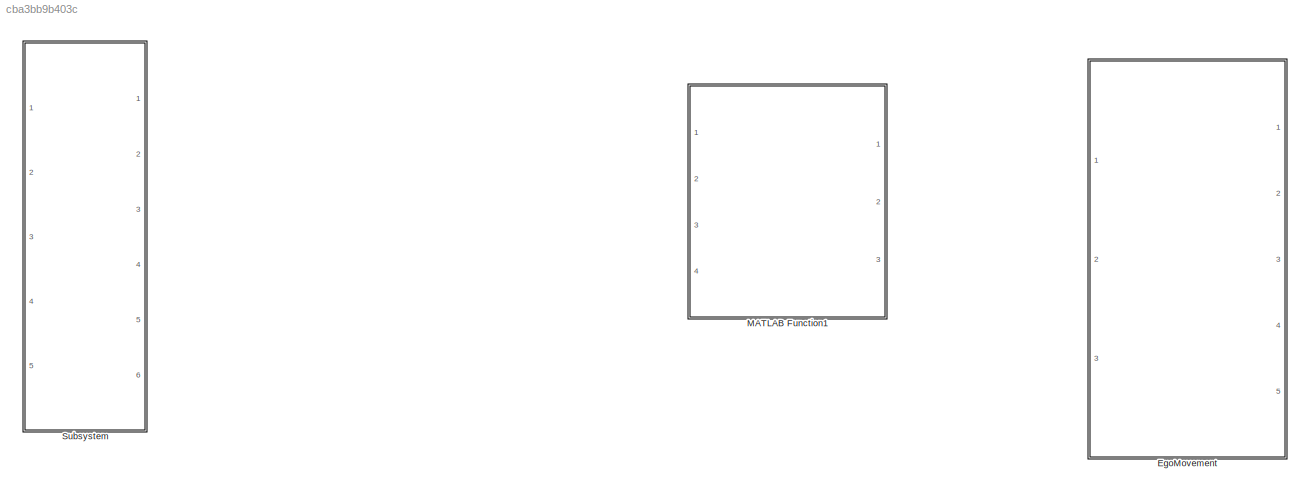
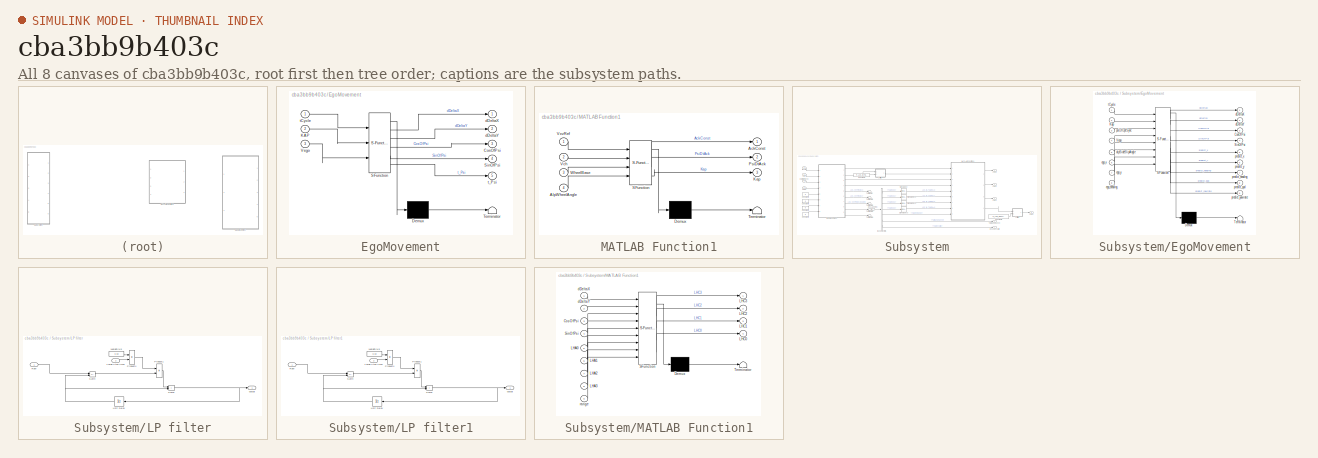
[diagram: thumbnail index - all 8 canvases of the model, root first then tree order]
MODEL slx_cba3bb9b403c
KIND model
CONFIG AbsTol = auto
CONFIG EnableMultiTasking = off
CONFIG FixedStep = auto
CONFIG MaxStep = auto
CONFIG MinStep = auto
CONFIG RelTol = 1e-3
CONFIG SampleTimeConstraint = Unconstrained
CONFIG SolverName = VariableStepAuto
CONFIG StartTime = 0.0
CONFIG StopTime = 10.0
BLOCK [SubSystem] EgoMovement
  ErrorFcn = Stateflow.Translate.translate
  PermitHierarchicalResolution = ExplicitOnly
  Ports = [3, 5]
  RequestExecContextInheritance = off
  SFBlockType = MATLAB Function
  TreatAsAtomicUnit = on
BLOCK [Demux] EgoMovement/ Demux 
  Outputs = 1
  Ports = [1, 1]
BLOCK [S-Function] EgoMovement/ SFunction 
  EnableBusSupport = on
  FunctionName = sf_sfun
  PortCounts = [3 6]
  Ports = [3, 6]
  SFcnIsStateOwnerBlock = off
  SFunctionDeploymentMode = off
  Tag = Stateflow S-Function 1
BLOCK [Terminator] EgoMovement/ Terminator 
BLOCK [Outport] EgoMovement/CosOfPsi
  Port = 3
BLOCK [Inport] EgoMovement/KAP
  Port = 2
BLOCK [Outport] EgoMovement/SinOfPsi
  Port = 4
BLOCK [Inport] EgoMovement/Vego
  Port = 3
BLOCK [Outport] EgoMovement/dDeltaX
BLOCK [Outport] EgoMovement/dDeltaY
  Port = 2
BLOCK [Inport] EgoMovement/tCycle
BLOCK [Outport] EgoMovement/t_Psi
  Port = 5
BLOCK [SubSystem] MATLAB Function1
  ErrorFcn = Stateflow.Translate.translate
  PermitHierarchicalResolution = ExplicitOnly
  Ports = [4, 3]
  RequestExecContextInheritance = off
  SFBlockType = MATLAB Function
  TreatAsAtomicUnit = on
BLOCK [Demux] MATLAB Function1/ Demux 
  Outputs = 1
  Ports = [1, 1]
BLOCK [S-Function] MATLAB Function1/ SFunction 
  EnableBusSupport = on
  FunctionName = sf_sfun
  PortCounts = [4 4]
  Ports = [4, 4]
  SFcnIsStateOwnerBlock = off
  SFunctionDeploymentMode = off
  Tag = Stateflow S-Function 3
BLOCK [Terminator] MATLAB Function1/ Terminator 
BLOCK [Outport] MATLAB Function1/AckConst
BLOCK [Inport] MATLAB Function1/AlpWheelAngle
  Port = 4
BLOCK [Outport] MATLAB Function1/Kap
  Port = 3
BLOCK [Outport] MATLAB Function1/PsiDtAck
  Port = 2
BLOCK [Inport] MATLAB Function1/Vch
  Port = 2
BLOCK [Inport] MATLAB Function1/VxvRef
BLOCK [Inport] MATLAB Function1/WheelBase
  Port = 3
BLOCK [SubSystem] Subsystem
  Ports = [5, 6]
  RequestExecContextInheritance = off
BLOCK [BusSelector] Subsystem/Bus Selector5
  OutputSignals = TarLineC0,TarLineC1,TarLineC2,TarLineC3,TarLineRange,TarDangerLevel,TarLineValid
  Ports = [1, 7]
BLOCK [Constant] Subsystem/Constant1
  OutDataTypeStr = single
  Value = 0
BLOCK [Constant] Subsystem/Constant2
  OutDataTypeStr = single
  Value = 0
BLOCK [Constant] Subsystem/Constant3
  OutDataTypeStr = single
  Value = 0
BLOCK [Constant] Subsystem/Constant4
  OutDataTypeStr = single
  Value = P_LCS_DyFilterTime
BLOCK [Constant] Subsystem/Constant5
  OutDataTypeStr = single
  Value = P_LCS_DesLineA0FilterTime
BLOCK [Constant] Subsystem/Constant8
  OutDataTypeStr = single
  Value = 0
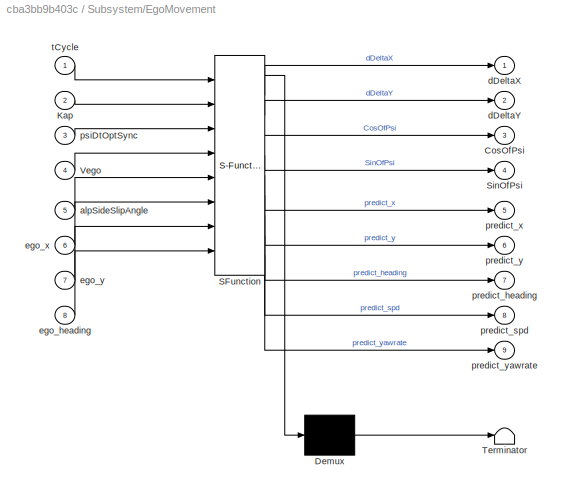
BLOCK [SubSystem] Subsystem/EgoMovement
  ErrorFcn = Stateflow.Translate.translate
  PermitHierarchicalResolution = ExplicitOnly
  Ports = [8, 9]
  RequestExecContextInheritance = off
  SFBlockType = MATLAB Function
  TreatAsAtomicUnit = on
BLOCK [Demux] Subsystem/EgoMovement/ Demux 
  Outputs = 1
  Ports = [1, 1]
BLOCK [S-Function] Subsystem/EgoMovement/ SFunction 
  EnableBusSupport = off
  FunctionName = sf_sfun
  PortCounts = [8 10]
  Ports = [8, 10]
  SFcnIsStateOwnerBlock = off
  SFunctionDeploymentMode = off
  Tag = Stateflow S-Function 9
BLOCK [Terminator] Subsystem/EgoMovement/ Terminator 
BLOCK [Outport] Subsystem/EgoMovement/CosOfPsi
  Port = 3
BLOCK [Inport] Subsystem/EgoMovement/Kap
  Port = 2
BLOCK [Outport] Subsystem/EgoMovement/SinOfPsi
  Port = 4
BLOCK [Inport] Subsystem/EgoMovement/Vego
  Port = 4
BLOCK [Inport] Subsystem/EgoMovement/alpSideSlipAngle
  Port = 5
BLOCK [Outport] Subsystem/EgoMovement/dDeltaX
BLOCK [Outport] Subsystem/EgoMovement/dDeltaY
  Port = 2
BLOCK [Inport] Subsystem/EgoMovement/ego_heading
  Port = 8
BLOCK [Inport] Subsystem/EgoMovement/ego_x
  Port = 6
BLOCK [Inport] Subsystem/EgoMovement/ego_y
  Port = 7
BLOCK [Outport] Subsystem/EgoMovement/predict_heading
  Port = 7
BLOCK [Outport] Subsystem/EgoMovement/predict_spd
  Port = 8
BLOCK [Outport] Subsystem/EgoMovement/predict_x
  Port = 5
BLOCK [Outport] Subsystem/EgoMovement/predict_y
  Port = 6
BLOCK [Outport] Subsystem/EgoMovement/predict_yawrate
  Port = 9
BLOCK [Inport] Subsystem/EgoMovement/psiDtOptSync
  Port = 3
BLOCK [Inport] Subsystem/EgoMovement/tCycle
BLOCK [Inport] Subsystem/Kap
  Port = 2
BLOCK [Outport] Subsystem/LHC0
  Port = 5
BLOCK [Outport] Subsystem/LHC1
  Port = 4
BLOCK [Outport] Subsystem/LHC2
  Port = 3
BLOCK [Outport] Subsystem/LHC3
  Port = 2
BLOCK [SubSystem] Subsystem/LP filter
  Ports = [2, 1]
  RequestExecContextInheritance = off
BLOCK [Product] Subsystem/LP filter/Product1
  Ports = [2, 1]
  RndMeth = Zero
BLOCK [Product] Subsystem/LP filter/Product4
  Inputs = */
  Ports = [2, 1]
  RndMeth = Zero
BLOCK [Inport] Subsystem/LP filter/Raw
BLOCK [Sum] Subsystem/LP filter/Sum4
  IconShape = rectangular
  Inputs = +-
  Ports = [2, 1]
BLOCK [Sum] Subsystem/LP filter/Sum5
  IconShape = rectangular
  Ports = [2, 1]
BLOCK [Inport] Subsystem/LP filter/TorqFilterTime
  Port = 2
BLOCK [UnitDelay] Subsystem/LP filter/Unit Delay
  HasFrameUpgradeWarning = on
  NameLocation = top
  SampleTime = -1
BLOCK [Constant] Subsystem/LP filter/Weight//N3
  OutDataTypeStr = single
  Value = 0.02
BLOCK [Outport] Subsystem/LP filter/output
BLOCK [SubSystem] Subsystem/LP filter1
  Ports = [2, 1]
  RequestExecContextInheritance = off
BLOCK [Product] Subsystem/LP filter1/Product1
  Ports = [2, 1]
  RndMeth = Zero
BLOCK [Product] Subsystem/LP filter1/Product4
  Inputs = */
  Ports = [2, 1]
  RndMeth = Zero
BLOCK [Inport] Subsystem/LP filter1/Raw
BLOCK [Sum] Subsystem/LP filter1/Sum4
  IconShape = rectangular
  Inputs = +-
  Ports = [2, 1]
BLOCK [Sum] Subsystem/LP filter1/Sum5
  IconShape = rectangular
  Ports = [2, 1]
BLOCK [Inport] Subsystem/LP filter1/TorqFilterTime
  Port = 2
BLOCK [UnitDelay] Subsystem/LP filter1/Unit Delay
  HasFrameUpgradeWarning = on
  NameLocation = top
  SampleTime = -1
BLOCK [Constant] Subsystem/LP filter1/Weight//N3
  OutDataTypeStr = single
  Value = 0.02
BLOCK [Outport] Subsystem/LP filter1/output
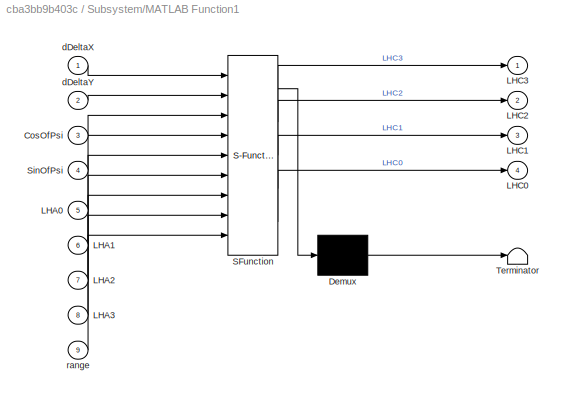
BLOCK [SubSystem] Subsystem/MATLAB Function1
  ErrorFcn = Stateflow.Translate.translate
  PermitHierarchicalResolution = ExplicitOnly
  Ports = [9, 4]
  RequestExecContextInheritance = off
  SFBlockType = MATLAB Function
  TreatAsAtomicUnit = on
BLOCK [Demux] Subsystem/MATLAB Function1/ Demux 
  Outputs = 1
  Ports = [1, 1]
BLOCK [S-Function] Subsystem/MATLAB Function1/ SFunction 
  EnableBusSupport = off
  FunctionName = sf_sfun
  PortCounts = [9 5]
  Ports = [9, 5]
  SFcnIsStateOwnerBlock = off
  SFunctionDeploymentMode = off
  Tag = Stateflow S-Function 23
BLOCK [Terminator] Subsystem/MATLAB Function1/ Terminator 
BLOCK [Inport] Subsystem/MATLAB Function1/CosOfPsi
  Port = 3
BLOCK [Inport] Subsystem/MATLAB Function1/LHA0
  Port = 5
BLOCK [Inport] Subsystem/MATLAB Function1/LHA1
  Port = 6
BLOCK [Inport] Subsystem/MATLAB Function1/LHA2
  Port = 7
BLOCK [Inport] Subsystem/MATLAB Function1/LHA3
  Port = 8
BLOCK [Outport] Subsystem/MATLAB Function1/LHC0
  Port = 4
BLOCK [Outport] Subsystem/MATLAB Function1/LHC1
  Port = 3
BLOCK [Outport] Subsystem/MATLAB Function1/LHC2
  Port = 2
BLOCK [Outport] Subsystem/MATLAB Function1/LHC3
BLOCK [Inport] Subsystem/MATLAB Function1/SinOfPsi
  Port = 4
BLOCK [Inport] Subsystem/MATLAB Function1/dDeltaX
BLOCK [Inport] Subsystem/MATLAB Function1/dDeltaY
  Port = 2
BLOCK [Inport] Subsystem/MATLAB Function1/range
  Port = 9
BLOCK [SignalConversion] Subsystem/Signal Copy
  OverrideOpt = off
BLOCK [SignalConversion] Subsystem/Signal Copy1
  OverrideOpt = off
BLOCK [SignalConversion] Subsystem/Signal Copy2
  OverrideOpt = off
BLOCK [SignalConversion] Subsystem/Signal Copy3
  OverrideOpt = off
BLOCK [Outport] Subsystem/TarDangerLevel
  Port = 6
BLOCK [Terminator] Subsystem/Terminator
BLOCK [Terminator] Subsystem/Terminator1
BLOCK [Terminator] Subsystem/Terminator2
BLOCK [Terminator] Subsystem/Terminator3
BLOCK [Terminator] Subsystem/Terminator4
BLOCK [Inport] Subsystem/Vego
  Port = 4
BLOCK [Inport] Subsystem/desLaneRel
  Port = 5
BLOCK [Outport] Subsystem/desLaneValid
BLOCK [Inport] Subsystem/psiDtOptSync
  Port = 3
BLOCK [Inport] Subsystem/tCycle
LINE Subsystem/Bus Selector5:1 -> Subsystem/Signal Copy:1
LINE Subsystem/Bus Selector5:2 -> Subsystem/Signal Copy1:1
LINE Subsystem/Bus Selector5:3 -> Subsystem/Signal Copy2:1
LINE Subsystem/Bus Selector5:4 -> Subsystem/Signal Copy3:1
LINE Subsystem/Bus Selector5:5 -> Subsystem/MATLAB Function1:9
LINE Subsystem/Bus Selector5:6 -> Subsystem/TarDangerLevel:1
LINE Subsystem/Bus Selector5:7 -> Subsystem/desLaneValid:1
LINE Subsystem/Constant1:1 -> Subsystem/EgoMovement:7
LINE Subsystem/Constant2:1 -> Subsystem/EgoMovement:8
LINE Subsystem/Constant3:1 -> Subsystem/EgoMovement:5
LINE Subsystem/Constant4:1 -> Subsystem/LP filter:2
LINE Subsystem/Constant5:1 -> Subsystem/LP filter1:2
LINE Subsystem/Constant8:1 -> Subsystem/EgoMovement:6
LINE Subsystem/EgoMovement:1 -> Subsystem/MATLAB Function1:1
LINE Subsystem/EgoMovement:2 -> Subsystem/LP filter:1
LINE Subsystem/EgoMovement:3 -> Subsystem/MATLAB Function1:3
LINE Subsystem/EgoMovement:4 -> Subsystem/MATLAB Function1:4
LINE Subsystem/EgoMovement:5 -> Subsystem/Terminator:1
LINE Subsystem/EgoMovement:6 -> Subsystem/Terminator1:1
LINE Subsystem/EgoMovement:7 -> Subsystem/Terminator2:1
LINE Subsystem/EgoMovement:8 -> Subsystem/Terminator3:1
LINE Subsystem/EgoMovement:9 -> Subsystem/Terminator4:1
LINE Subsystem/Kap:1 -> Subsystem/EgoMovement:2
LINE Subsystem/LP filter/Product1:1 -> Subsystem/LP filter/Sum5:1
LINE Subsystem/LP filter/Product4:1 -> Subsystem/LP filter/Product1:1
LINE Subsystem/LP filter/Raw:1 -> Subsystem/LP filter/Sum4:1
LINE Subsystem/LP filter/Sum4:1 -> Subsystem/LP filter/Product1:2
NET Subsystem/LP filter/Sum5:1 -> Subsystem/LP filter/Unit Delay:1, Subsystem/LP filter/output:1
LINE Subsystem/LP filter/TorqFilterTime:1 -> Subsystem/LP filter/Product4:2
NET Subsystem/LP filter/Unit Delay:1 -> Subsystem/LP filter/Sum4:2, Subsystem/LP filter/Sum5:2
LINE Subsystem/LP filter/Weight//N3:1 -> Subsystem/LP filter/Product4:1
LINE Subsystem/LP filter1/Product1:1 -> Subsystem/LP filter1/Sum5:1
LINE Subsystem/LP filter1/Product4:1 -> Subsystem/LP filter1/Product1:1
LINE Subsystem/LP filter1/Raw:1 -> Subsystem/LP filter1/Sum4:1
LINE Subsystem/LP filter1/Sum4:1 -> Subsystem/LP filter1/Product1:2
NET Subsystem/LP filter1/Sum5:1 -> Subsystem/LP filter1/Unit Delay:1, Subsystem/LP filter1/output:1
LINE Subsystem/LP filter1/TorqFilterTime:1 -> Subsystem/LP filter1/Product4:2
NET Subsystem/LP filter1/Unit Delay:1 -> Subsystem/LP filter1/Sum4:2, Subsystem/LP filter1/Sum5:2
LINE Subsystem/LP filter1/Weight//N3:1 -> Subsystem/LP filter1/Product4:1
LINE Subsystem/LP filter1:1 -> Subsystem/LHC0:1
LINE Subsystem/LP filter:1 -> Subsystem/MATLAB Function1:2
LINE Subsystem/MATLAB Function1:1 -> Subsystem/LHC3:1
LINE Subsystem/MATLAB Function1:2 -> Subsystem/LHC2:1
LINE Subsystem/MATLAB Function1:3 -> Subsystem/LHC1:1
LINE Subsystem/MATLAB Function1:4 -> Subsystem/LP filter1:1
LINE Subsystem/Signal Copy1:1 -> Subsystem/MATLAB Function1:6
LINE Subsystem/Signal Copy2:1 -> Subsystem/MATLAB Function1:7
LINE Subsystem/Signal Copy3:1 -> Subsystem/MATLAB Function1:8
LINE Subsystem/Signal Copy:1 -> Subsystem/MATLAB Function1:5
LINE Subsystem/Vego:1 -> Subsystem/EgoMovement:4
LINE Subsystem/desLaneRel:1 -> Subsystem/Bus Selector5:1
LINE Subsystem/psiDtOptSync:1 -> Subsystem/EgoMovement:3
LINE Subsystem/tCycle:1 -> Subsystem/EgoMovement:1
note: NET lines group one-source signal fan-out (src -> all destinations, sorted); 1:1 wires keep LINE
CHART Subsystem/MATLAB Function1 states=1 transitions=1
  STATE_LABEL 'eML_blk_kernel()'
  STATE_LABEL 'SCRIPT:\nfunction [LHC3,LHC2,LHC1,LHC0] = fcn(dDeltaX,dDeltaY,CosOfPsi,SinOfPsi,LHA0,LHA1,LHA2,LHA3,range)\n\n % temp_x = [0,1/4*range,1/2*range,range];\n temp_x = [0,20,40,80];\n  \n y1 = LHA0+LHA1*temp_x(1)+LHA2*temp_x(1)^2+LHA3*temp_x(1)^3;\n y2 = LHA0+LHA1*temp_x(2)+LHA2*temp_x(2)^2+LHA3*temp_x(2)^3;\n y3 = LHA0+LHA1*temp_x(3)+LHA2*temp_x(3)^2+LHA3*temp_x(3)^3;\n y4 = LHA0+LHA1*temp_x(4)+LHA2*temp_x(4)...<+793ch>'
CHART EgoMovement states=1 transitions=1
  STATE_LABEL 'eML_blk_kernel()'
  STATE_LABEL 'SCRIPT:\nfunction [dDeltaX,dDeltaY,CosOfPsi,SinOfPsi,t_Psi] = EgoVehicleMovement(tCycle,KAP,Vego)\n%#codegen\ndDeltaX = single(0);\ndDeltaY = single(0);\nt_Psi = single(0);\nfor i = 1:(length(KAP)-1) % KAP 从最早时间开始排列\n    Kap = KAP(i);\n    if Kap==0\n        dDeltaX = dDeltaX + Vego(i)*tCycle;\n        dDeltaY = dDeltaY + single(0);\n        CosOfPsi = single(1);\n        SinOfPsi = single(0);\n    else\n      ...<+240ch>'
CHART MATLAB Function1 states=1 transitions=1
  STATE_LABEL 'eML_blk_kernel()'
  STATE_LABEL 'SCRIPT:\nfunction [AckConst,PsiDtAck,Kap] = Ackman(VxvRef,Vch,WheelBase,AlpWheelAngle)\n%#codegen\nAckConst = single(zeros(1,1));\nPsiDtAck = single(zeros(length(AlpWheelAngle),1));\nKap = single(zeros(length(AlpWheelAngle),1));\nfor i = 1:length(AlpWheelAngle)\n    if VxvRef(i,1)==uint8(0)%转换常数数据类型\n        PsiDtAck(i,1) = single(0);%转换常数数据类型\n        AckConst = single(1);%转换常数数据类型\n    else\n        AckCon...<+222ch>'
CHART Subsystem/EgoMovement states=1 transitions=1
  STATE_LABEL 'eML_blk_kernel()'
  STATE_LABEL 'SCRIPT:\nfunction [dDeltaX,dDeltaY,CosOfPsi,SinOfPsi,predict_x,predict_y,predict_heading,predict_spd,predict_yawrate] = EgoVehicleMovement(tCycle,Kap,psiDtOptSync,Vego,alpSideSlipAngle,ego_x,ego_y,ego_heading)\n%#codegen\nif Kap==0\n    dDeltaX = Vego*tCycle;\n    dDeltaY = single(0);\n    CosOfPsi = single(1);\n    SinOfPsi = single(0);\n    t_Psi = single(0);\nelse\n    t_kap = Kap;\n    if ((Kap>0.125)||(...<+697ch>'
CHART  states=0 transitions=0
CHART  states=0 transitions=0
CHART  states=0 transitions=0
CHART  states=0 transitions=0
